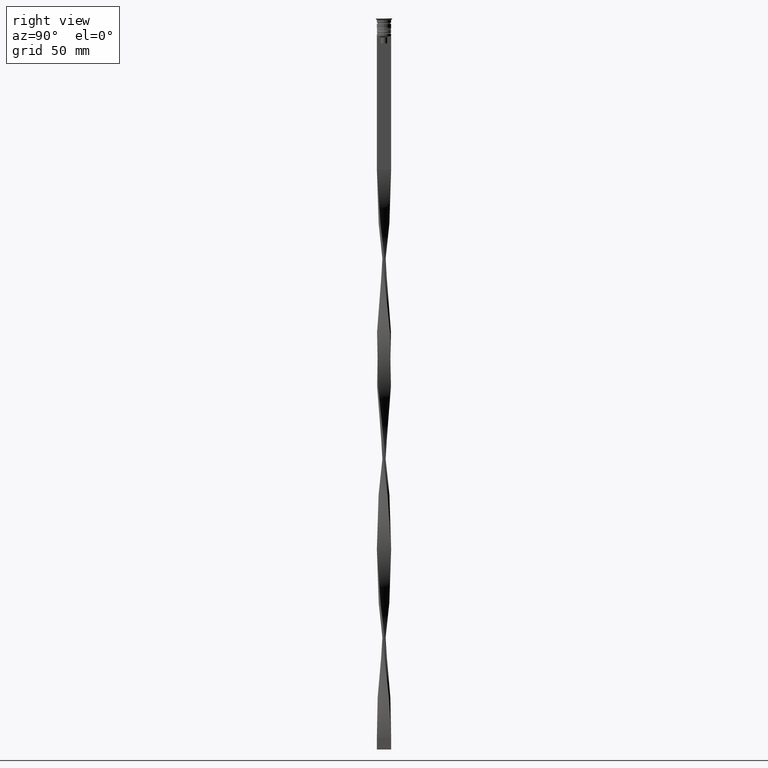
[diagram: clean part render]
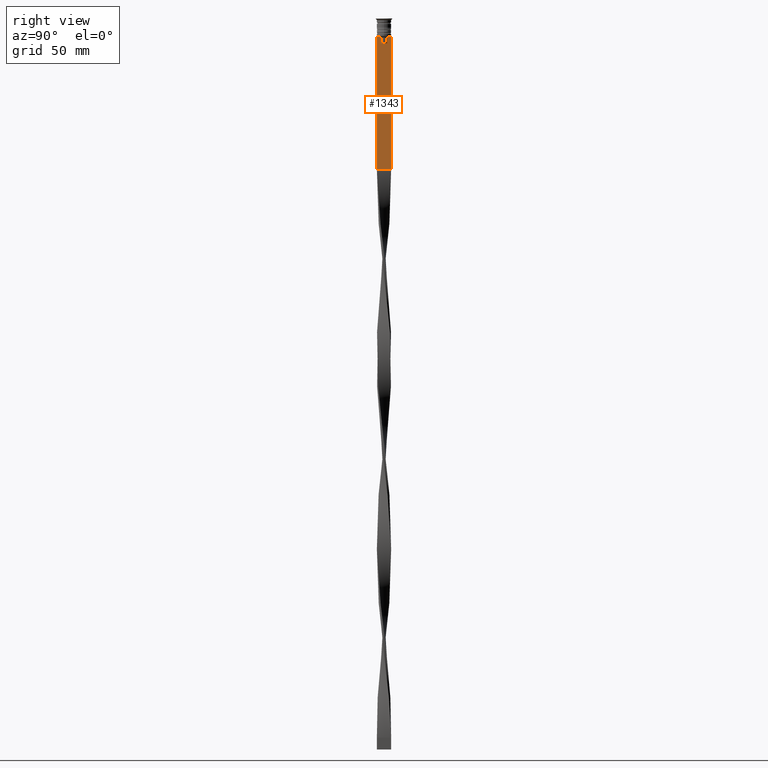
[diagram: same view with one face highlighted and labeled with its STEP entity id]
A machine part, right view. The second image highlights one B-rep face of the part: STEP entity #1343.
In plain terms, the highlighted planar face has unit normal (-1, 0, 0).
Its self-contained STEP definition (entity closure, byte-faithful):
#23 = PLANE ( 'NONE',  #3282 ) ;
#114 = EDGE_LOOP ( 'NONE', ( #1645, #2015, #3007, #2390, #816, #1749, #300, #2969, #3066, #461, #3497, #513 ) ) ;
#231 = VERTEX_POINT ( 'NONE', #2081 ) ;
#252 = VERTEX_POINT ( 'NONE', #1763 ) ;
#268 = CARTESIAN_POINT ( 'NONE',  ( 0.4999999999999998890, -3.000000000000000000, -1.417237469701779329 ) ) ;
#289 = LINE ( 'NONE', #1841, #338 ) ;
#294 = B_SPLINE_CURVE_WITH_KNOTS ( 'NONE', 3,
 ( #1606, #2181, #3377, #2469 ),
 .UNSPECIFIED., .F., .F.,
 ( 4, 4 ),
 ( 0.003278537493109848298, 0.004003794023484941178 ),
 .UNSPECIFIED. ) ;
#300 = ORIENTED_EDGE ( 'NONE', *, *, #382, .T. ) ;
#315 = EDGE_CURVE ( 'NONE', #1179, #252, #3273, .T. ) ;
#337 = CARTESIAN_POINT ( 'NONE',  ( 0.4999999999999998890, -1.307669683062199439, -10.49999999999999822 ) ) ;
#338 = VECTOR ( 'NONE', #2133, 1000.000000000000000 ) ;
#349 = VERTEX_POINT ( 'NONE', #989 ) ;
#364 = EDGE_CURVE ( 'NONE', #231, #2564, #2865, .T. ) ;
#382 = EDGE_CURVE ( 'NONE', #349, #2248, #687, .T. ) ;
#402 = VECTOR ( 'NONE', #2629, 1000.000000000000000 ) ;
#437 = EDGE_CURVE ( 'NONE', #252, #349, #3509, .T. ) ;
#461 = ORIENTED_EDGE ( 'NONE', *, *, #364, .T. ) ;
#513 = ORIENTED_EDGE ( 'NONE', *, *, #2376, .T. ) ;
#527 = EDGE_CURVE ( 'NONE', #1159, #231, #2399, .T. ) ;
#591 = VECTOR ( 'NONE', #884, 1000.000000000000000 ) ;
#687 = LINE ( 'NONE', #3134, #3850 ) ;
#698 = CARTESIAN_POINT ( 'NONE',  ( 0.4999999999999998890, 1.399999999999997691, -10.49999999999999822 ) ) ;
#735 = CARTESIAN_POINT ( 'NONE',  ( 0.4999999999999998890, -3.000000000000000000, -7.500000000000000000 ) ) ;
#791 = VECTOR ( 'NONE', #3338, 1000.000000000000000 ) ;
#802 = CARTESIAN_POINT ( 'NONE',  ( 0.4999999999999998890, -1.307669683062199439, -8.000000000000000000 ) ) ;
#816 = ORIENTED_EDGE ( 'NONE', *, *, #315, .T. ) ;
#817 = EDGE_CURVE ( 'NONE', #1085, #2178, #289, .T. ) ;
#843 = VECTOR ( 'NONE', #1658, 1000.000000000000000 ) ;
#868 = CARTESIAN_POINT ( 'NONE',  ( 0.4999999999999998890, -1.307669683062199439, 0.000000000000000000 ) ) ;
#884 = DIRECTION ( 'NONE',  ( 0.000000000000000000, 0.000000000000000000, -1.000000000000000000 ) ) ;
#901 = LINE ( 'NONE', #3385, #1289 ) ;
#936 = CARTESIAN_POINT ( 'NONE',  ( 0.4999999999999998890, -1.833030277982335754, -7.500000000000000000 ) ) ;
#966 = CARTESIAN_POINT ( 'NONE',  ( 0.4999999999999998890, -3.000000000000000000, -63.50000000000000000 ) ) ;
#972 = CARTESIAN_POINT ( 'NONE',  ( 0.4999999999999998890, -3.000000000000000000, -7.500000000000000000 ) ) ;
#989 = CARTESIAN_POINT ( 'NONE',  ( 0.4999999999999998890, -1.833030277982335754, -7.500000000000000000 ) ) ;
#1085 = VERTEX_POINT ( 'NONE', #3634 ) ;
#1087 = EDGE_CURVE ( 'NONE', #3175, #2564, #2109, .T. ) ;
#1159 = VERTEX_POINT ( 'NONE', #972 ) ;
#1179 = VERTEX_POINT ( 'NONE', #337 ) ;
#1244 = DIRECTION ( 'NONE',  ( 0.000000000000000000, 0.000000000000000000, -1.000000000000000000 ) ) ;
#1289 = VECTOR ( 'NONE', #1244, 1000.000000000000000 ) ;
#1334 = LINE ( 'NONE', #698, #1683 ) ;
#1343 = ADVANCED_FACE ( 'NONE', ( #1530 ), #23, .F. ) ;
#1391 = CARTESIAN_POINT ( 'NONE',  ( 0.4999999999999998890, 1.307669683062199439, -10.49999999999999822 ) ) ;
#1444 = DIRECTION ( 'NONE',  ( -0.000000000000000000, -0.000000000000000000, 1.000000000000000000 ) ) ;
#1469 = CARTESIAN_POINT ( 'NONE',  ( 0.4999999999999998890, 3.000000000000000000, -63.50000000000000000 ) ) ;
#1530 = FACE_OUTER_BOUND ( 'NONE', #114, .T. ) ;
#1606 = CARTESIAN_POINT ( 'NONE',  ( 0.4999999999999998890, 1.833030277982335754, -7.500000000000000000 ) ) ;
#1645 = ORIENTED_EDGE ( 'NONE', *, *, #817, .T. ) ;
#1658 = DIRECTION ( 'NONE',  ( 0.000000000000000000, 0.000000000000000000, -1.000000000000000000 ) ) ;
#1672 = VECTOR ( 'NONE', #1444, 1000.000000000000000 ) ;
#1683 = VECTOR ( 'NONE', #1966, 1000.000000000000000 ) ;
#1749 = ORIENTED_EDGE ( 'NONE', *, *, #437, .T. ) ;
#1763 = CARTESIAN_POINT ( 'NONE',  ( 0.4999999999999998890, -1.307669683062199439, -8.000000000000000000 ) ) ;
#1775 = VERTEX_POINT ( 'NONE', #1391 ) ;
#1841 = CARTESIAN_POINT ( 'NONE',  ( 0.4999999999999998890, -3.000000000000000000, -7.500000000000000000 ) ) ;
#1870 = DIRECTION ( 'NONE',  ( 0.000000000000000000, -1.000000000000000000, 0.000000000000000000 ) ) ;
#1966 = DIRECTION ( 'NONE',  ( 0.000000000000000000, -1.000000000000000000, 0.000000000000000000 ) ) ;
#2015 = ORIENTED_EDGE ( 'NONE', *, *, #2199, .T. ) ;
#2081 = CARTESIAN_POINT ( 'NONE',  ( 0.4999999999999998890, -3.000000000000000000, -63.50000000000000000 ) ) ;
#2086 = CARTESIAN_POINT ( 'NONE',  ( 0.4999999999999998890, 3.000000000000000000, -1.417237469701779329 ) ) ;
#2109 = LINE ( 'NONE', #2086, #843 ) ;
#2133 = DIRECTION ( 'NONE',  ( 0.000000000000000000, -1.000000000000000000, 0.000000000000000000 ) ) ;
#2167 = CARTESIAN_POINT ( 'NONE',  ( 0.4999999999999998890, -3.000000000000000000, -1.417237469701779329 ) ) ;
#2178 = VERTEX_POINT ( 'NONE', #3159 ) ;
#2181 = CARTESIAN_POINT ( 'NONE',  ( 0.4999999999999998890, 1.659046061654642967, -7.667851756010362507 ) ) ;
#2198 = DIRECTION ( 'NONE',  ( 0.000000000000000000, 1.000000000000000000, 0.000000000000000000 ) ) ;
#2199 = EDGE_CURVE ( 'NONE', #2178, #2912, #294, .T. ) ;
#2248 = VERTEX_POINT ( 'NONE', #3418 ) ;
#2305 = DIRECTION ( 'NONE',  ( 0.000000000000000000, 0.000000000000000000, 1.000000000000000000 ) ) ;
#2363 = LINE ( 'NONE', #3299, #791 ) ;
#2376 = EDGE_CURVE ( 'NONE', #3175, #1085, #2363, .T. ) ;
#2390 = ORIENTED_EDGE ( 'NONE', *, *, #3886, .T. ) ;
#2399 = LINE ( 'NONE', #268, #591 ) ;
#2434 = CARTESIAN_POINT ( 'NONE',  ( 0.4999999999999998890, 3.000000000000000000, -7.500000000000000000 ) ) ;
#2469 = CARTESIAN_POINT ( 'NONE',  ( 0.4999999999999998890, 1.307669683062199439, -8.000000000000000000 ) ) ;
#2564 = VERTEX_POINT ( 'NONE', #1469 ) ;
#2629 = DIRECTION ( 'NONE',  ( 0.000000000000000000, -1.000000000000000000, 0.000000000000000000 ) ) ;
#2760 = EDGE_CURVE ( 'NONE', #2248, #1159, #3204, .T. ) ;
#2865 = LINE ( 'NONE', #966, #3339 ) ;
#2912 = VERTEX_POINT ( 'NONE', #3260 ) ;
#2969 = ORIENTED_EDGE ( 'NONE', *, *, #2760, .T. ) ;
#3007 = ORIENTED_EDGE ( 'NONE', *, *, #3230, .T. ) ;
#3045 = CARTESIAN_POINT ( 'NONE',  ( 0.4999999999999998890, -1.659011726860414093, -7.667884880598472286 ) ) ;
#3066 = ORIENTED_EDGE ( 'NONE', *, *, #527, .T. ) ;
#3134 = CARTESIAN_POINT ( 'NONE',  ( 0.4999999999999998890, -3.000000000000000000, -7.500000000000000000 ) ) ;
#3159 = CARTESIAN_POINT ( 'NONE',  ( 0.4999999999999998890, 1.833030277982335754, -7.500000000000000000 ) ) ;
#3175 = VERTEX_POINT ( 'NONE', #2434 ) ;
#3204 = LINE ( 'NONE', #735, #402 ) ;
#3230 = EDGE_CURVE ( 'NONE', #2912, #1775, #901, .T. ) ;
#3252 = CARTESIAN_POINT ( 'NONE',  ( 0.4999999999999998890, -1.484307477388859153, -7.835011508197190722 ) ) ;
#3260 = CARTESIAN_POINT ( 'NONE',  ( 0.4999999999999998890, 1.307669683062199439, -8.000000000000000000 ) ) ;
#3273 = LINE ( 'NONE', #868, #1672 ) ;
#3282 = AXIS2_PLACEMENT_3D ( 'NONE', #2167, #3380, #2305 ) ;
#3299 = CARTESIAN_POINT ( 'NONE',  ( 0.4999999999999998890, -3.000000000000000000, -7.500000000000000000 ) ) ;
#3338 = DIRECTION ( 'NONE',  ( 0.000000000000000000, -1.000000000000000000, 0.000000000000000000 ) ) ;
#3339 = VECTOR ( 'NONE', #2198, 1000.000000000000000 ) ;
#3377 = CARTESIAN_POINT ( 'NONE',  ( 0.4999999999999998890, 1.484355510416485835, -7.834966642958598015 ) ) ;
#3380 = DIRECTION ( 'NONE',  ( -1.000000000000000000, 0.000000000000000000, 0.000000000000000000 ) ) ;
#3385 = CARTESIAN_POINT ( 'NONE',  ( 0.4999999999999998890, 1.307669683062199439, 0.000000000000000000 ) ) ;
#3418 = CARTESIAN_POINT ( 'NONE',  ( 0.4999999999999998890, -2.856571371417139904, -7.500000000000000000 ) ) ;
#3497 = ORIENTED_EDGE ( 'NONE', *, *, #1087, .F. ) ;
#3509 = B_SPLINE_CURVE_WITH_KNOTS ( 'NONE', 3,
 ( #802, #3252, #3045, #936 ),
 .UNSPECIFIED., .F., .F.,
 ( 4, 4 ),
 ( 0.007225659348748082224, 0.007950554640278054835 ),
 .UNSPECIFIED. ) ;
#3634 = CARTESIAN_POINT ( 'NONE',  ( 0.4999999999999998890, 2.856571371417139904, -7.500000000000000000 ) ) ;
#3850 = VECTOR ( 'NONE', #1870, 1000.000000000000000 ) ;
#3886 = EDGE_CURVE ( 'NONE', #1775, #1179, #1334, .T. ) ;